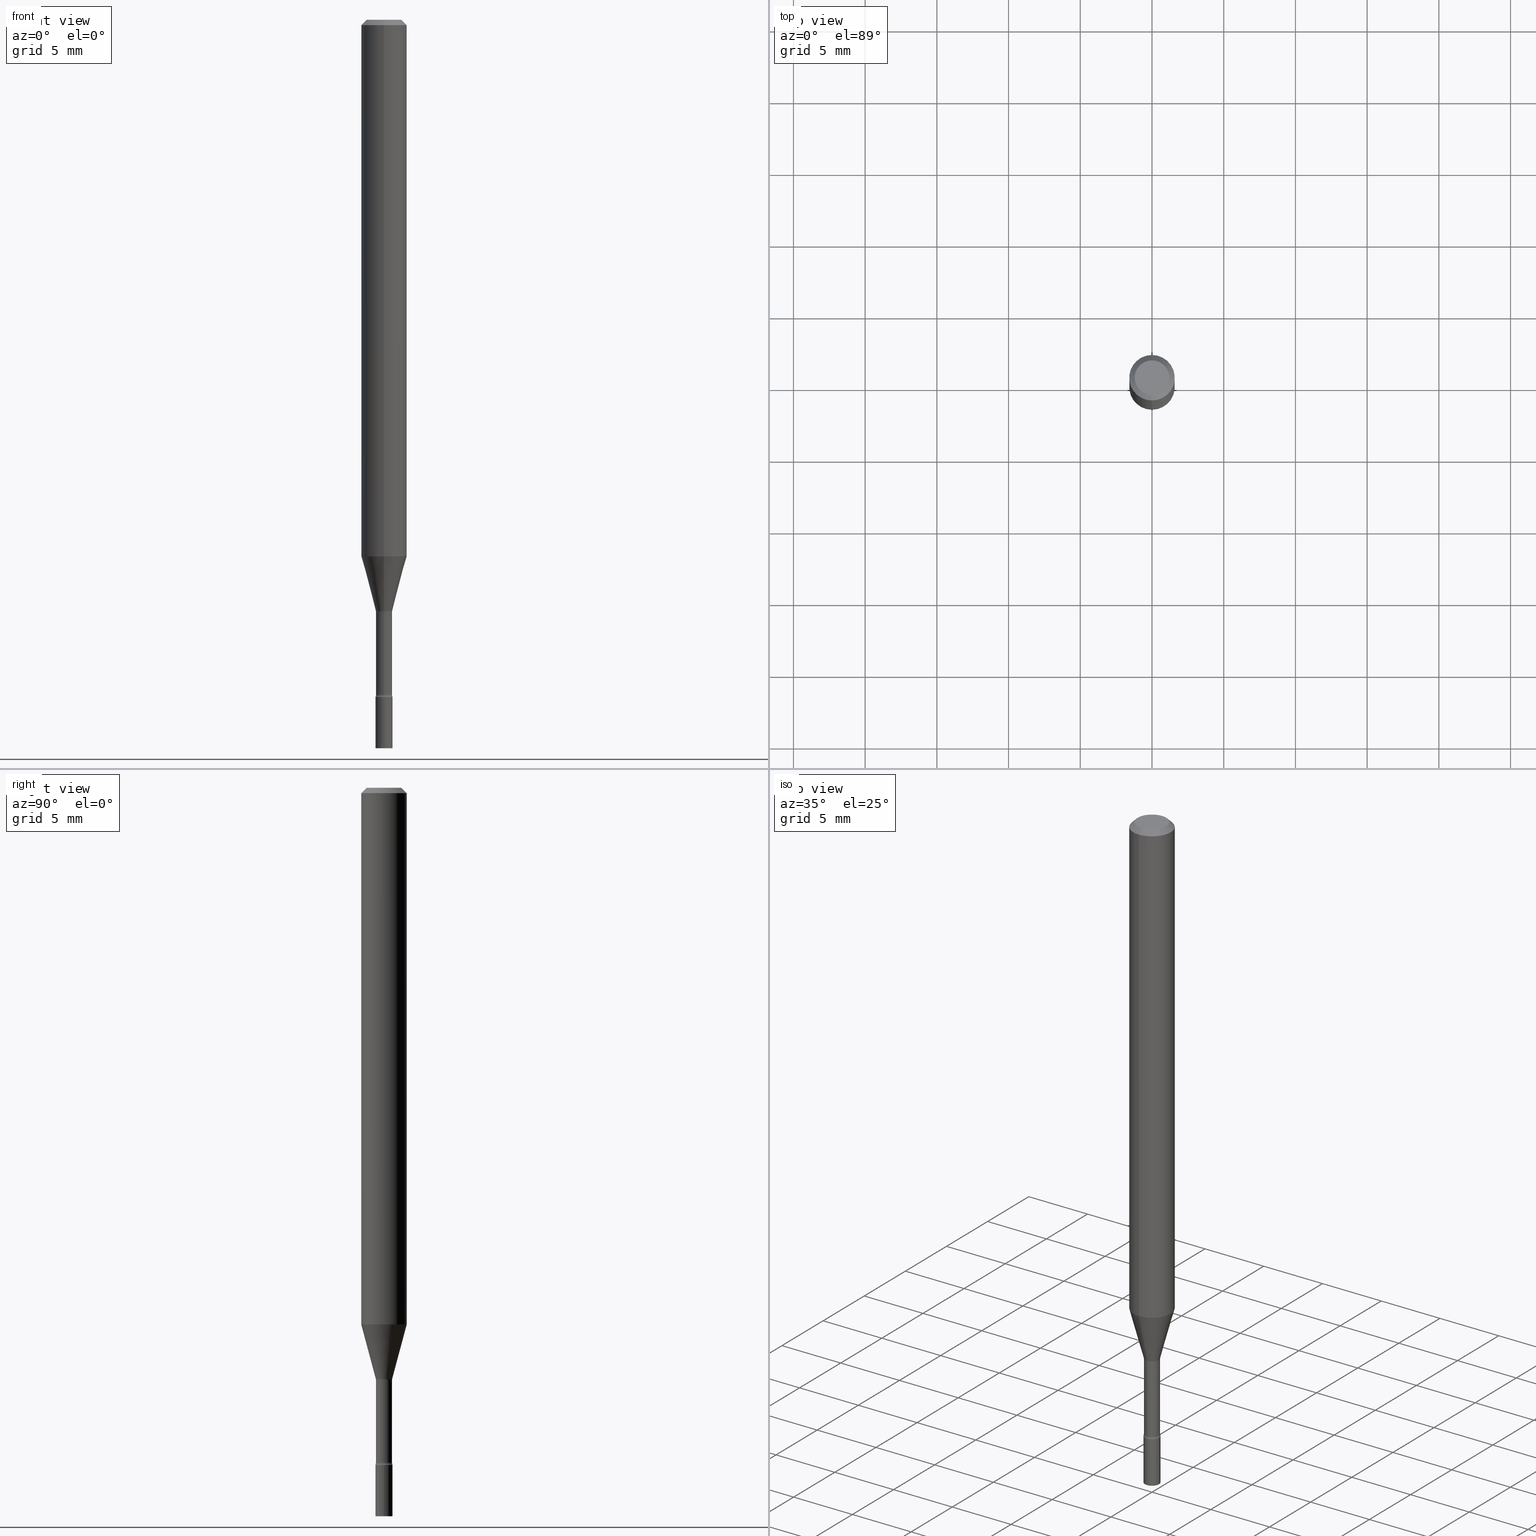
[diagram: canonical four-view strip — front | top / right | iso, engineering-drawing reading convention]
A machine part, canonical four-view strip (front | top / right | iso — engineering-drawing reading convention). The complete STEP part file that produces these views, byte-faithful:
ISO-10303-21;
HEADER;
FILE_DESCRIPTION (( 'STEP AP203' ),
    '1' );
FILE_NAME ('09371.STEP',
    '2024-03-08T23:26:30',
    ( '' ),
    ( '' ),
    'SwSTEP 2.0',
    'SolidWorks 2023',
    '' );
FILE_SCHEMA (( 'CONFIG_CONTROL_DESIGN' ));
ENDSEC;

DATA;
#1 = AXIS2_PLACEMENT_3D ( 'NONE', #191, #510, #148 ) ;
#2 = CC_DESIGN_SECURITY_CLASSIFICATION ( #336, ( #158 ) ) ;
#3 = DIRECTION ( 'NONE',  ( -6.982962677686265922E-15, -1.000000000000000000, 0.000000000000000000 ) ) ;
#4 = CC_DESIGN_DATE_AND_TIME_ASSIGNMENT ( #206, #520, ( #336 ) ) ;
#5 = ADVANCED_FACE ( 'NONE', ( #399 ), #71, .T. ) ;
#6 = CARTESIAN_POINT ( 'NONE',  ( -4.364351673553557762E-16, -0.06250000000000517641, -1.473225147374217503 ) ) ;
#7 = ORIENTED_EDGE ( 'NONE', *, *, #517, .T. ) ;
#8 = CALENDAR_DATE ( 2024, 8, 3 ) ;
#9 = EDGE_LOOP ( 'NONE', ( #288, #159 ) ) ;
#10 = CIRCLE ( 'NONE', #79, 0.02350000000000000352 ) ;
#11 = LINE ( 'NONE', #329, #295 ) ;
#12 = EDGE_CURVE ( 'NONE', #286, #381, #119, .T. ) ;
#13 = CARTESIAN_POINT ( 'NONE',  ( -0.02350000000000000352, -6.569835700394226398E-15, -2.000000000000000000 ) ) ;
#14 = EDGE_CURVE ( 'NONE', #78, #381, #494, .T. ) ;
#15 = EDGE_LOOP ( 'NONE', ( #419, #261, #438, #189 ) ) ;
#16 = DIRECTION ( 'NONE',  ( -6.982962677686265922E-15, -1.000000000000000000, 3.491467325019568091E-15 ) ) ;
#17 = CARTESIAN_POINT ( 'NONE',  ( -4.287811248607203282E-16, -0.06250000000000005551, -0.01499999999999981209 ) ) ;
#18 = VECTOR ( 'NONE', #59, 39.37007874015749564 ) ;
#19 = VECTOR ( 'NONE', #415, 39.37007874015748143 ) ;
#20 = VERTEX_POINT ( 'NONE', #103 ) ;
#21 = CARTESIAN_POINT ( 'NONE',  ( 4.546126510698169319E-29, -6.490663808909408226E-15, -1.858999999999999986 ) ) ;
#22 = ORIENTED_EDGE ( 'NONE', *, *, #12, .T. ) ;
#23 = LINE ( 'NONE', #142, #18 ) ;
#24 = FACE_OUTER_BOUND ( 'NONE', #310, .T. ) ;
#25 = EDGE_LOOP ( 'NONE', ( #512, #73, #469, #22 ) ) ;
#26 = DIRECTION ( 'NONE',  ( -6.982962677686265922E-15, -1.000000000000000000, 3.491467325019567696E-15 ) ) ;
#27 = CARTESIAN_POINT ( 'NONE',  ( 4.530670406511994597E-29, -6.468544740734887756E-15, -1.852672283192177582 ) ) ;
#28 = VERTEX_POINT ( 'NONE', #307 ) ;
#29 = VECTOR ( 'NONE', #309, 39.37007874015748143 ) ;
#30 = EDGE_CURVE ( 'NONE', #357, #20, #91, .T. ) ;
#31 = PRODUCT_DEFINITION_SHAPE ( 'NONE', 'NONE',  #131 ) ;
#32 = EDGE_LOOP ( 'NONE', ( #311, #339, #83, #330 ) ) ;
#33 = APPROVAL_DATE_TIME ( #392, #250 ) ;
#34 = DESIGN_CONTEXT ( 'detailed design', #363, 'design' ) ;
#35 = ORIENTED_EDGE ( 'NONE', *, *, #214, .F. ) ;
#36 = DIRECTION ( 'NONE',  ( -2.445478591985838029E-29, 3.491467325019567696E-15, 1.000000000000000000 ) ) ;
#37 = LINE ( 'NONE', #80, #398 ) ;
#38 = AXIS2_PLACEMENT_3D ( 'NONE', #271, #200, #102 ) ;
#39 = ORIENTED_EDGE ( 'NONE', *, *, #457, .T. ) ;
#40 = CIRCLE ( 'NONE', #405, 0.06250000000000000000 ) ;
#41 = CC_DESIGN_PERSON_AND_ORGANIZATION_ASSIGNMENT ( #168, #490, ( #158 ) ) ;
#42 = DIRECTION ( 'NONE',  ( -2.445478591985838029E-29, 3.491467325019567696E-15, 1.000000000000000000 ) ) ;
#43 = DIRECTION ( 'NONE',  ( 2.445478591985838029E-29, -3.491467325019567696E-15, -1.000000000000000000 ) ) ;
#44 = PERSON_AND_ORGANIZATION_ROLE ( 'classification_officer' ) ;
#45 = CARTESIAN_POINT ( 'NONE',  ( 7.070997803370271275E-46, -1.009542993615190427E-31, -2.891457658448894287E-17 ) ) ;
#46 = ORIENTED_EDGE ( 'NONE', *, *, #277, .F. ) ;
#47 = AXIS2_PLACEMENT_3D ( 'NONE', #313, #361, #109 ) ;
#48 = AXIS2_PLACEMENT_3D ( 'NONE', #225, #331, #463 ) ;
#49 = PERSON_AND_ORGANIZATION_ROLE ( 'design_supplier' ) ;
#50 =( GEOMETRIC_REPRESENTATION_CONTEXT ( 3 ) GLOBAL_UNCERTAINTY_ASSIGNED_CONTEXT ( ( #149 ) ) GLOBAL_UNIT_ASSIGNED_CONTEXT ( ( #355, #478, #390 ) ) REPRESENTATION_CONTEXT ( 'NONE', 'WORKASPACE' ) );
#51 = FACE_OUTER_BOUND ( 'NONE', #170, .T. ) ;
#52 = DIRECTION ( 'NONE',  ( -6.982962677686265922E-15, -1.000000000000000000, 0.000000000000000000 ) ) ;
#53 = DIRECTION ( 'NONE',  ( 6.982962677686265922E-15, 1.000000000000000000, -3.491467325019568091E-15 ) ) ;
#54 = COORDINATED_UNIVERSAL_TIME_OFFSET ( 5, 0, .BEHIND. ) ;
#55 = CARTESIAN_POINT ( 'NONE',  ( 3.668217887978764348E-31, -5.237200987529362293E-17, -0.01500000000000003067 ) ) ;
#56 = AXIS2_PLACEMENT_3D ( 'NONE', #55, #375, #323 ) ;
#57 = CYLINDRICAL_SURFACE ( 'NONE', #483, 0.02210000000000002587 ) ;
#58 = EDGE_CURVE ( 'NONE', #64, #97, #156, .T. ) ;
#59 = DIRECTION ( 'NONE',  ( -1.807323732225329350E-15, -0.2588190451025180194, 0.9659258262890689783 ) ) ;
#60 = EDGE_CURVE ( 'NONE', #242, #28, #199, .T. ) ;
#61 = DIRECTION ( 'NONE',  ( -2.445478591985838029E-29, 3.491467325019567696E-15, 1.000000000000000000 ) ) ;
#62 = CARTESIAN_POINT ( 'NONE',  ( 1.570299446030275612E-16, 0.02209999999999431863, -1.625974787463811078 ) ) ;
#63 = APPROVAL_PERSON_ORGANIZATION ( #284, #453, #436 ) ;
#64 = VERTEX_POINT ( 'NONE', #353 ) ;
#65 = CARTESIAN_POINT ( 'NONE',  ( 2.636113549670428316E-16, 0.03709999999999358949, -1.852672283192177582 ) ) ;
#66 = ORIENTED_EDGE ( 'NONE', *, *, #138, .F. ) ;
#67 = CARTESIAN_POINT ( 'NONE',  ( 3.976270622386257300E-29, -5.677060627859345352E-15, -1.625974787463811078 ) ) ;
#68 = ADVANCED_FACE ( 'NONE', ( #476 ), #155, .F. ) ;
#69 = ORIENTED_EDGE ( 'NONE', *, *, #257, .T. ) ;
#70 = CYLINDRICAL_SURFACE ( 'NONE', #144, 0.02350000000000000352 ) ;
#71 = CONICAL_SURFACE ( 'NONE', #346, 0.06250000000000000000, 0.7853981633974483900 ) ;
#72 = AXIS2_PLACEMENT_3D ( 'NONE', #445, #61, #263 ) ;
#73 = ORIENTED_EDGE ( 'NONE', *, *, #426, .F. ) ;
#74 = APPLICATION_PROTOCOL_DEFINITION ( 'international standard', 'config_control_design', 1994, #338 ) ;
#75 = ORIENTED_EDGE ( 'NONE', *, *, #416, .F. ) ;
#76 = COORDINATED_UNIVERSAL_TIME_OFFSET ( 5, 0, .BEHIND. ) ;
#77 = DIRECTION ( 'NONE',  ( -6.982962677686265922E-15, -1.000000000000000000, 0.000000000000000000 ) ) ;
#78 = VERTEX_POINT ( 'NONE', #115 ) ;
#79 = AXIS2_PLACEMENT_3D ( 'NONE', #21, #500, #186 ) ;
#80 = CARTESIAN_POINT ( 'NONE',  ( -0.02350000000000000352, 1.669775429036235687E-16, -1.155949746209903035E-30 ) ) ;
#81 = CARTESIAN_POINT ( 'NONE',  ( 0.000000000000000000, 0.000000000000000000, 0.000000000000000000 ) ) ;
#82 = CARTESIAN_POINT ( 'NONE',  ( -1.640996229255817445E-16, -0.02350000000000649139, -1.858999999999999986 ) ) ;
#83 = ORIENTED_EDGE ( 'NONE', *, *, #277, .T. ) ;
#84 = AXIS2_PLACEMENT_3D ( 'NONE', #183, #332, #305 ) ;
#85 = DIRECTION ( 'NONE',  ( -6.982962677686265922E-15, -1.000000000000000000, 3.491467325019568091E-15 ) ) ;
#86 = DIRECTION ( 'NONE',  ( -6.982962677686265922E-15, -1.000000000000000000, 3.483106191921935554E-15 ) ) ;
#87 = EDGE_CURVE ( 'NONE', #192, #78, #471, .T. ) ;
#88 = MANIFOLD_SOLID_BREP ( 'Body-Move/Copy2[2]', #449 ) ;
#89 = CARTESIAN_POINT ( 'NONE',  ( 7.070997803370271275E-46, -1.009542993615190427E-31, -2.891457658448894287E-17 ) ) ;
#90 = ADVANCED_FACE ( 'NONE', ( #229 ), #151, .T. ) ;
#91 = CIRCLE ( 'NONE', #181, 0.02350000000000000352 ) ;
#92 = AXIS2_PLACEMENT_3D ( 'NONE', #382, #265, #301 ) ;
#93 = AXIS2_PLACEMENT_3D ( 'NONE', #204, #194, #364 ) ;
#94 = CARTESIAN_POINT ( 'NONE',  ( 0.02350000000000000352, -1.640996229256272766E-16, 1.145901542312045115E-30 ) ) ;
#95 = ADVANCED_FACE ( 'NONE', ( #24 ), #376, .T. ) ;
#96 = DIRECTION ( 'NONE',  ( -2.445478591985837749E-29, 3.491467325019568091E-15, 1.000000000000000000 ) ) ;
#97 = VERTEX_POINT ( 'NONE', #241 ) ;
#98 = DIRECTION ( 'NONE',  ( -4.851104656540964275E-15, -0.7071067811865500152, -0.7071067811865450192 ) ) ;
#99 = CARTESIAN_POINT ( 'NONE',  ( -3.773273898774340269E-16, -0.04749999999999999362, 1.369301213539405015E-16 ) ) ;
#100 = CIRCLE ( 'NONE', #358, 0.04749999999999999362 ) ;
#101 = AXIS2_PLACEMENT_3D ( 'NONE', #67, #222, #26 ) ;
#102 = DIRECTION ( 'NONE',  ( -6.982962677686265922E-15, -1.000000000000000000, 0.000000000000000000 ) ) ;
#103 = CARTESIAN_POINT ( 'NONE',  ( -0.02350000000000000352, -6.569835700394226398E-15, -1.858999999999999986 ) ) ;
#104 = ORIENTED_EDGE ( 'NONE', *, *, #177, .F. ) ;
#105 = FACE_OUTER_BOUND ( 'NONE', #327, .T. ) ;
#106 = CARTESIAN_POINT ( 'NONE',  ( 4.364351673553919652E-16, 0.06249999999999995143, -0.01500000000000024751 ) ) ;
#107 = ORIENTED_EDGE ( 'NONE', *, *, #517, .F. ) ;
#108 = APPROVAL_STATUS ( 'not_yet_approved' ) ;
#109 = DIRECTION ( 'NONE',  ( -6.982962677686265922E-15, -1.000000000000000000, 3.491467325019567696E-15 ) ) ;
#110 = AXIS2_PLACEMENT_3D ( 'NONE', #89, #256, #407 ) ;
#111 = AXIS2_PLACEMENT_3D ( 'NONE', #443, #244, #400 ) ;
#112 = ORIENTED_EDGE ( 'NONE', *, *, #177, .T. ) ;
#113 = LOCAL_TIME ( 18, 26, 30.00000000000000000, #371 ) ;
#114 = DATE_TIME_ROLE ( 'creation_date' ) ;
#115 = CARTESIAN_POINT ( 'NONE',  ( 1.620037437533484049E-16, 0.02209999999999359352, -1.852672283192177582 ) ) ;
#116 = ORIENTED_EDGE ( 'NONE', *, *, #439, .T. ) ;
#117 = ORIENTED_EDGE ( 'NONE', *, *, #519, .F. ) ;
#118 = FACE_OUTER_BOUND ( 'NONE', #396, .T. ) ;
#119 = CIRCLE ( 'NONE', #334, 0.02209999999999999812 ) ;
#120 = AXIS2_PLACEMENT_3D ( 'NONE', #367, #298, #294 ) ;
#121 = ADVANCED_FACE ( 'NONE', ( #395 ), #188, .T. ) ;
#122 = FACE_OUTER_BOUND ( 'NONE', #15, .T. ) ;
#123 = CALENDAR_DATE ( 2024, 8, 3 ) ;
#124 = CARTESIAN_POINT ( 'NONE',  ( 4.440892098500625669E-16, 0.06250000000000000000, -2.182167078137229810E-16 ) ) ;
#125 = EDGE_LOOP ( 'NONE', ( #514, #107 ) ) ;
#126 = DIRECTION ( 'NONE',  ( -2.445478591985838029E-29, 3.491467325019567696E-15, 1.000000000000000000 ) ) ;
#127 = CARTESIAN_POINT ( 'NONE',  ( 1.570299446029823003E-16, 0.02210000000000002587, -7.716142788293254101E-17 ) ) ;
#128 = AXIS2_PLACEMENT_3D ( 'NONE', #251, #406, #161 ) ;
#129 = DIRECTION ( 'NONE',  ( -6.982962677686269077E-15, -1.000000000000000000, 0.000000000000000000 ) ) ;
#130 = ORIENTED_EDGE ( 'NONE', *, *, #14, .F. ) ;
#131 = PRODUCT_DEFINITION ( 'UNKNOWN', '', #158, #34 ) ;
#132 = EDGE_LOOP ( 'NONE', ( #374, #518, #39, #173 ) ) ;
#133 = LINE ( 'NONE', #94, #29 ) ;
#134 = CONICAL_SURFACE ( 'NONE', #92, 0.06250000000000000000, 0.7853981633974483900 ) ;
#135 = DIRECTION ( 'NONE',  ( 7.105427357601001859E-15, 1.000000000000000000, 0.000000000000000000 ) ) ;
#136 = ORIENTED_EDGE ( 'NONE', *, *, #12, .F. ) ;
#137 = FACE_OUTER_BOUND ( 'NONE', #275, .T. ) ;
#138 = EDGE_CURVE ( 'NONE', #237, #352, #397, .T. ) ;
#139 = PERSON ( 'UNSPECIFIED', 'UNSPECIFIED', 'UNSPECIFIED', ('UNSPECIFIED'), ('UNSPECIFIED'), ('UNSPECIFIED') ) ;
#140 = CARTESIAN_POINT ( 'NONE',  ( -4.364351673553916201E-16, -0.06250000000000000000, 2.182167078137229810E-16 ) ) ;
#141 = EDGE_CURVE ( 'NONE', #64, #428, #100, .T. ) ;
#142 = CARTESIAN_POINT ( 'NONE',  ( -1.578925554262733618E-16, -0.02261111260566964209, -1.622092501787272933 ) ) ;
#143 = CIRCLE ( 'NONE', #509, 0.02350000000000000352 ) ;
#144 = AXIS2_PLACEMENT_3D ( 'NONE', #147, #160, #429 ) ;
#145 = DIRECTION ( 'NONE',  ( -2.438088387897960049E-29, 3.491481338843145188E-15, 1.000000000000000000 ) ) ;
#146 = EDGE_LOOP ( 'NONE', ( #203, #116, #7, #226 ) ) ;
#147 = CARTESIAN_POINT ( 'NONE',  ( 0.000000000000000000, 0.000000000000000000, 0.000000000000000000 ) ) ;
#148 = DIRECTION ( 'NONE',  ( 1.000000000000000000, -6.982962677686265922E-15, 4.876176775795935793E-29 ) ) ;
#149 = UNCERTAINTY_MEASURE_WITH_UNIT (LENGTH_MEASURE( 1.000000000000000082E-05 ), #355, 'distance_accuracy_value', 'NONE');
#150 = EDGE_LOOP ( 'NONE', ( #130, #435, #152, #46 ) ) ;
#151 = CYLINDRICAL_SURFACE ( 'NONE', #1, 0.02350000000000000352 ) ;
#152 = ORIENTED_EDGE ( 'NONE', *, *, #468, .T. ) ;
#153 = CC_DESIGN_PERSON_AND_ORGANIZATION_ASSIGNMENT ( #316, #513, ( #131 ) ) ;
#154 = DATE_AND_TIME ( #475, #224 ) ;
#155 = TOROIDAL_SURFACE ( 'NONE', #47, 0.03710000000000000103, 0.01500000000000002720 ) ;
#156 = LINE ( 'NONE', #106, #267 ) ;
#157 = AXIS2_PLACEMENT_3D ( 'NONE', #418, #343, #300 ) ;
#158 = PRODUCT_DEFINITION_FORMATION_WITH_SPECIFIED_SOURCE ( 'ANY', '', #402, .NOT_KNOWN. ) ;
#159 = ORIENTED_EDGE ( 'NONE', *, *, #351, .T. ) ;
#160 = DIRECTION ( 'NONE',  ( -2.445468806185136597E-29, 3.491481338843145583E-15, 1.000000000000000000 ) ) ;
#161 = DIRECTION ( 'NONE',  ( 1.000000000000000000, -6.982962677686269866E-15, 0.000000000000000000 ) ) ;
#162 = ORIENTED_EDGE ( 'NONE', *, *, #413, .F. ) ;
#163 = ADVANCED_FACE ( 'NONE', ( #51 ), #212, .T. ) ;
#164 = PERSON_AND_ORGANIZATION ( #139, #184 ) ;
#165 = ORIENTED_EDGE ( 'NONE', *, *, #60, .T. ) ;
#166 = AXIS2_PLACEMENT_3D ( 'NONE', #185, #460, #425 ) ;
#167 = APPROVAL_PERSON_ORGANIZATION ( #408, #422, #486 ) ;
#168 = PERSON_AND_ORGANIZATION ( #139, #184 ) ;
#169 = DIRECTION ( 'NONE',  ( -6.982962677686265922E-15, -1.000000000000000000, 3.491467325019567696E-15 ) ) ;
#170 = EDGE_LOOP ( 'NONE', ( #314, #393, #136, #283 ) ) ;
#171 = DIRECTION ( 'NONE',  ( 1.839019923739599526E-15, 0.2588190451025248473, 0.9659258262890670910 ) ) ;
#172 = CARTESIAN_POINT ( 'NONE',  ( -1.543234751768266986E-16, -0.02210000000000567413, -1.625974787463811078 ) ) ;
#173 = ORIENTED_EDGE ( 'NONE', *, *, #287, .F. ) ;
#174 = CIRCLE ( 'NONE', #110, 0.04749999999999999362 ) ;
#175 = DIRECTION ( 'NONE',  ( -1.000000000000000000, 6.982962677686265922E-15, -4.883557194083112340E-29 ) ) ;
#176 = ORIENTED_EDGE ( 'NONE', *, *, #227, .T. ) ;
#177 = EDGE_CURVE ( 'NONE', #387, #230, #335, .T. ) ;
#178 = DIRECTION ( 'NONE',  ( -6.982962677686267499E-15, -1.000000000000000000, 0.000000000000000000 ) ) ;
#179 = ADVANCED_FACE ( 'NONE', ( #318 ), #440, .T. ) ;
#180 = DIRECTION ( 'NONE',  ( -2.445478591985837749E-29, 3.491467325019568091E-15, 1.000000000000000000 ) ) ;
#181 = AXIS2_PLACEMENT_3D ( 'NONE', #232, #274, #464 ) ;
#182 = CIRCLE ( 'NONE', #166, 0.02261111260566397996 ) ;
#183 = CARTESIAN_POINT ( 'NONE',  ( 1.640996229256761859E-16, 0.02349999999999301953, -2.000000000000000000 ) ) ;
#184 = ORGANIZATION ( 'UNSPECIFIED', 'UNSPECIFIED', '' ) ;
#185 = CARTESIAN_POINT ( 'NONE',  ( 3.966792487341526174E-29, -5.663482968149508762E-15, -1.622092501787272933 ) ) ;
#186 = DIRECTION ( 'NONE',  ( 1.000000000000000000, -6.982962677686269866E-15, 0.000000000000000000 ) ) ;
#187 = CARTESIAN_POINT ( 'NONE',  ( 0.000000000000000000, 0.000000000000000000, 0.000000000000000000 ) ) ;
#188 = PLANE ( 'NONE',  #441 ) ;
#189 = ORIENTED_EDGE ( 'NONE', *, *, #341, .F. ) ;
#190 = PERSON_AND_ORGANIZATION ( #139, #184 ) ;
#191 = CARTESIAN_POINT ( 'NONE',  ( 0.000000000000000000, 0.000000000000000000, 0.000000000000000000 ) ) ;
#192 = VERTEX_POINT ( 'NONE', #484 ) ;
#193 = ADVANCED_FACE ( 'NONE', ( #105 ), #268, .F. ) ;
#194 = DIRECTION ( 'NONE',  ( 0.000000000000000000, 0.000000000000000000, 1.000000000000000000 ) ) ;
#195 = EDGE_LOOP ( 'NONE', ( #117, #233, #293, #162 ) ) ;
#196 = LENGTH_MEASURE_WITH_UNIT ( LENGTH_MEASURE( 0.02539999999999999897 ), #312 );
#197 = ORIENTED_EDGE ( 'NONE', *, *, #416, .T. ) ;
#198 = APPROVAL_DATE_TIME ( #394, #453 ) ;
#199 = CIRCLE ( 'NONE', #38, 0.02350000000000000352 ) ;
#200 = DIRECTION ( 'NONE',  ( -2.445478591985838029E-29, 3.491467325019567696E-15, 1.000000000000000000 ) ) ;
#201 = AXIS2_PLACEMENT_3D ( 'NONE', #487, #175, #178 ) ;
#202 = LOCAL_TIME ( 18, 26, 30.00000000000000000, #481 ) ;
#203 = ORIENTED_EDGE ( 'NONE', *, *, #386, .F. ) ;
#204 = CARTESIAN_POINT ( 'NONE',  ( 0.000000000000000000, 0.000000000000000000, 0.000000000000000000 ) ) ;
#205 = APPROVAL_DATE_TIME ( #328, #422 ) ;
#206 = DATE_AND_TIME ( #8, #113 ) ;
#207 = DIRECTION ( 'NONE',  ( -1.000000000000000000, 6.982962677686265922E-15, -4.883557194083112340E-29 ) ) ;
#208 = AXIS2_PLACEMENT_3D ( 'NONE', #264, #36, #480 ) ;
#209 = VECTOR ( 'NONE', #96, 39.37007874015748143 ) ;
#210 = EDGE_CURVE ( 'NONE', #431, #499, #217, .T. ) ;
#211 = SECURITY_CLASSIFICATION_LEVEL ( 'unclassified' ) ;
#212 = CYLINDRICAL_SURFACE ( 'NONE', #388, 0.02210000000000002587 ) ;
#213 = DIRECTION ( 'NONE',  ( -2.445478591985837749E-29, 3.491467325019568091E-15, 1.000000000000000000 ) ) ;
#214 = EDGE_CURVE ( 'NONE', #230, #387, #143, .T. ) ;
#215 = DIRECTION ( 'NONE',  ( 2.445478591985837749E-29, -3.491467325019568091E-15, -1.000000000000000000 ) ) ;
#216 = DIMENSIONAL_EXPONENTS ( 1.000000000000000000, 0.000000000000000000, 0.000000000000000000, 0.000000000000000000, 0.000000000000000000, 0.000000000000000000, 0.000000000000000000 ) ;
#217 = CIRCLE ( 'NONE', #72, 0.02261111260566397996 ) ;
#218 = FACE_OUTER_BOUND ( 'NONE', #461, .T. ) ;
#219 = EDGE_CURVE ( 'NONE', #499, #286, #292, .T. ) ;
#220 = ORIENTED_EDGE ( 'NONE', *, *, #488, .F. ) ;
#221 = DIRECTION ( 'NONE',  ( 7.105427357601001859E-15, 1.000000000000000000, 0.000000000000000000 ) ) ;
#222 = DIRECTION ( 'NONE',  ( -2.445478591985838029E-29, 3.491467325019567696E-15, 1.000000000000000000 ) ) ;
#223 = CONICAL_SURFACE ( 'NONE', #515, 0.02261111260566397996, 0.2617993877991501850 ) ;
#224 = LOCAL_TIME ( 18, 26, 30.00000000000000000, #516 ) ;
#225 = CARTESIAN_POINT ( 'NONE',  ( 4.530670406511994597E-29, -6.468544740734887756E-15, -1.852672283192177582 ) ) ;
#226 = ORIENTED_EDGE ( 'NONE', *, *, #276, .F. ) ;
#227 = EDGE_CURVE ( 'NONE', #391, #97, #423, .T. ) ;
#228 = FACE_OUTER_BOUND ( 'NONE', #132, .T. ) ;
#229 = FACE_OUTER_BOUND ( 'NONE', #195, .T. ) ;
#230 = VERTEX_POINT ( 'NONE', #13 ) ;
#231 = LINE ( 'NONE', #140, #209 ) ;
#232 = CARTESIAN_POINT ( 'NONE',  ( 4.546126510698169319E-29, -6.490663808909408226E-15, -1.858999999999999986 ) ) ;
#233 = ORIENTED_EDGE ( 'NONE', *, *, #214, .T. ) ;
#234 = PRODUCT_RELATED_PRODUCT_CATEGORY ( 'detail', '', ( #402 ) ) ;
#235 = CARTESIAN_POINT ( 'NONE',  ( 4.546144702501673568E-29, -6.490637757211377196E-15, -1.858999999999999986 ) ) ;
#236 = AXIS2_PLACEMENT_3D ( 'NONE', #456, #270, #221 ) ;
#237 = VERTEX_POINT ( 'NONE', #6 ) ;
#238 = CALENDAR_DATE ( 2024, 8, 3 ) ;
#239 = ORIENTED_EDGE ( 'NONE', *, *, #351, .F. ) ;
#240 = CALENDAR_DATE ( 2024, 8, 3 ) ;
#241 = CARTESIAN_POINT ( 'NONE',  ( 4.440892098500988052E-16, 0.06249999999999993755, -0.01500000000000024751 ) ) ;
#242 = VERTEX_POINT ( 'NONE', #82 ) ;
#243 = CIRCLE ( 'NONE', #48, 0.02210000000000006057 ) ;
#244 = DIRECTION ( 'NONE',  ( -2.445478591985838029E-29, 3.491467325019567696E-15, 1.000000000000000000 ) ) ;
#245 = DIRECTION ( 'NONE',  ( -2.445468806185136597E-29, 3.491481338843145583E-15, 1.000000000000000000 ) ) ;
#246 = DIRECTION ( 'NONE',  ( -6.982962677686266711E-15, -1.000000000000000000, 3.491467325019567302E-15 ) ) ;
#247 = DIRECTION ( 'NONE',  ( -2.445478591985838029E-29, 3.491467325019567696E-15, 1.000000000000000000 ) ) ;
#248 = AXIS2_PLACEMENT_3D ( 'NONE', #27, #350, #285 ) ;
#249 = AXIS2_PLACEMENT_3D ( 'NONE', #65, #427, #135 ) ;
#250 = APPROVAL ( #108, 'UNSPECIFIED' ) ;
#251 = CARTESIAN_POINT ( 'NONE',  ( 4.890937612370273194E-29, -6.982962677686291165E-15, -2.000000000000000000 ) ) ;
#252 = PLANE ( 'NONE',  #495 ) ;
#253 = SHAPE_DEFINITION_REPRESENTATION ( #31, #308 ) ;
#254 = ADVANCED_FACE ( 'NONE', ( #122 ), #223, .T. ) ;
#255 = CARTESIAN_POINT ( 'NONE',  ( 3.316907271900976096E-16, 0.04749999999999999362, -1.803019862306739220E-16 ) ) ;
#256 = DIRECTION ( 'NONE',  ( -2.445478591985838029E-29, 3.491467325019567696E-15, 1.000000000000000000 ) ) ;
#257 = EDGE_CURVE ( 'NONE', #352, #97, #409, .T. ) ;
#258 = EDGE_LOOP ( 'NONE', ( #104, #35 ) ) ;
#259 = AXIS2_PLACEMENT_3D ( 'NONE', #497, #207, #129 ) ;
#260 = PLANE ( 'NONE',  #505 ) ;
#261 = ORIENTED_EDGE ( 'NONE', *, *, #210, .T. ) ;
#262 = CARTESIAN_POINT ( 'NONE',  ( -4.364351673553912750E-16, -0.06250000000000005551, -0.01499999999999981209 ) ) ;
#263 = DIRECTION ( 'NONE',  ( -6.982962677686265922E-15, -1.000000000000000000, 0.000000000000000000 ) ) ;
#264 = CARTESIAN_POINT ( 'NONE',  ( 4.530652276630265840E-29, -6.468570703757412318E-15, -1.852672283192177582 ) ) ;
#265 = DIRECTION ( 'NONE',  ( 2.445478591985838029E-29, -3.491467325019567696E-15, -1.000000000000000000 ) ) ;
#266 = ORIENTED_EDGE ( 'NONE', *, *, #302, .T. ) ;
#267 = VECTOR ( 'NONE', #466, 39.37007874015748143 ) ;
#268 = TOROIDAL_SURFACE ( 'NONE', #208, 0.03710000000000005654, 0.01499999999999999077 ) ;
#269 = CC_DESIGN_APPROVAL ( #422, ( #336 ) ) ;
#270 = DIRECTION ( 'NONE',  ( 1.000000000000000000, -7.105427357601001070E-15, 4.926315336922240552E-29 ) ) ;
#271 = CARTESIAN_POINT ( 'NONE',  ( 4.546144702501673568E-29, -6.490637757211377196E-15, -1.858999999999999986 ) ) ;
#272 = FACE_OUTER_BOUND ( 'NONE', #125, .T. ) ;
#273 = ADVANCED_FACE ( 'NONE', ( #377 ), #252, .F. ) ;
#274 = DIRECTION ( 'NONE',  ( -2.445468806185136597E-29, 3.491481338843145583E-15, 1.000000000000000000 ) ) ;
#275 = EDGE_LOOP ( 'NONE', ( #239, #197, #176, #322 ) ) ;
#276 = EDGE_CURVE ( 'NONE', #192, #242, #404, .T. ) ;
#277 = EDGE_CURVE ( 'NONE', #381, #286, #280, .T. ) ;
#278 = ORIENTED_EDGE ( 'NONE', *, *, #426, .T. ) ;
#279 = DIRECTION ( 'NONE',  ( -6.982962677686265922E-15, -1.000000000000000000, 0.000000000000000000 ) ) ;
#280 = CIRCLE ( 'NONE', #120, 0.02209999999999999812 ) ;
#281 = AXIS2_PLACEMENT_3D ( 'NONE', #235, #42, #279 ) ;
#282 = CARTESIAN_POINT ( 'NONE',  ( 3.966792487341526174E-29, -5.663482968149508762E-15, -1.622092501787272933 ) ) ;
#283 = ORIENTED_EDGE ( 'NONE', *, *, #468, .F. ) ;
#284 = PERSON_AND_ORGANIZATION ( #139, #184 ) ;
#285 = DIRECTION ( 'NONE',  ( -6.982962677686265922E-15, -1.000000000000000000, 0.000000000000000000 ) ) ;
#286 = VERTEX_POINT ( 'NONE', #172 ) ;
#287 = EDGE_CURVE ( 'NONE', #97, #391, #40, .T. ) ;
#288 = ORIENTED_EDGE ( 'NONE', *, *, #141, .T. ) ;
#289 = DIRECTION ( 'NONE',  ( -2.445468806185136877E-29, 3.491481338843145188E-15, 1.000000000000000000 ) ) ;
#290 = ADVANCED_FACE ( 'NONE', ( #218 ), #370, .T. ) ;
#291 = DIRECTION ( 'NONE',  ( 1.000000000000000000, -6.982962677686265922E-15, 4.876176775795935793E-29 ) ) ;
#292 = CIRCLE ( 'NONE', #201, 0.01500000000000002720 ) ;
#293 = ORIENTED_EDGE ( 'NONE', *, *, #488, .T. ) ;
#294 = DIRECTION ( 'NONE',  ( -6.982962677686265922E-15, -1.000000000000000000, 0.000000000000000000 ) ) ;
#295 = VECTOR ( 'NONE', #171, 39.37007874015748143 ) ;
#296 = DIRECTION ( 'NONE',  ( -2.445478591985837749E-29, 3.491467325019568091E-15, 1.000000000000000000 ) ) ;
#297 = CARTESIAN_POINT ( 'NONE',  ( 3.668217887978764348E-31, -5.237200987529362293E-17, -0.01500000000000003067 ) ) ;
#298 = DIRECTION ( 'NONE',  ( -2.445478591985838029E-29, 3.491467325019567696E-15, 1.000000000000000000 ) ) ;
#299 = ORIENTED_EDGE ( 'NONE', *, *, #30, .T. ) ;
#300 = DIRECTION ( 'NONE',  ( -6.982962677686265922E-15, -1.000000000000000000, 3.491467325019567696E-15 ) ) ;
#301 = DIRECTION ( 'NONE',  ( 6.982962677686265922E-15, 1.000000000000000000, -3.483106191921935554E-15 ) ) ;
#302 = EDGE_CURVE ( 'NONE', #431, #352, #11, .T. ) ;
#303 = CARTESIAN_POINT ( 'NONE',  ( 0.02350000000000000352, -7.147062300611918023E-15, -2.000000000000000000 ) ) ;
#304 = CC_DESIGN_PERSON_AND_ORGANIZATION_ASSIGNMENT ( #164, #49, ( #158 ) ) ;
#305 = DIRECTION ( 'NONE',  ( -1.000000000000000000, 6.982962677686265922E-15, -4.876176775795935793E-29 ) ) ;
#306 = CARTESIAN_POINT ( 'NONE',  ( 4.530652276630265840E-29, -6.468570703757412318E-15, -1.852672283192177582 ) ) ;
#307 = CARTESIAN_POINT ( 'NONE',  ( 1.669775429036689529E-16, 0.02349999999999350525, -1.858999999999999986 ) ) ;
#308 = ADVANCED_BREP_SHAPE_REPRESENTATION ( '09371', ( #448, #88, #93 ), #50 ) ;
#309 = DIRECTION ( 'NONE',  ( -2.445468806185136877E-29, 3.491481338843145188E-15, 1.000000000000000000 ) ) ;
#310 = EDGE_LOOP ( 'NONE', ( #278, #266, #66, #317 ) ) ;
#311 = ORIENTED_EDGE ( 'NONE', *, *, #210, .F. ) ;
#312 =( LENGTH_UNIT ( ) NAMED_UNIT ( * ) SI_UNIT ( $, .METRE. ) );
#313 = CARTESIAN_POINT ( 'NONE',  ( 3.976270622386257300E-29, -5.677060627859345352E-15, -1.625974787463811078 ) ) ;
#314 = ORIENTED_EDGE ( 'NONE', *, *, #87, .T. ) ;
#315 = AXIS2_PLACEMENT_3D ( 'NONE', #485, #126, #410 ) ;
#316 = PERSON_AND_ORGANIZATION ( #139, #184 ) ;
#317 = ORIENTED_EDGE ( 'NONE', *, *, #447, .F. ) ;
#318 = FACE_OUTER_BOUND ( 'NONE', #258, .T. ) ;
#319 = ORIENTED_EDGE ( 'NONE', *, *, #227, .F. ) ;
#320 = PERSON_AND_ORGANIZATION ( #139, #184 ) ;
#321 = CIRCLE ( 'NONE', #281, 0.02350000000000000352 ) ;
#322 = ORIENTED_EDGE ( 'NONE', *, *, #58, .F. ) ;
#323 = DIRECTION ( 'NONE',  ( -6.982962677686265922E-15, -1.000000000000000000, 3.483106191921935554E-15 ) ) ;
#324 = CARTESIAN_POINT ( 'NONE',  ( 3.668217887978764348E-31, -5.237200987529362293E-17, -0.01500000000000003067 ) ) ;
#325 = APPROVAL_STATUS ( 'not_yet_approved' ) ;
#326 = FACE_OUTER_BOUND ( 'NONE', #150, .T. ) ;
#327 = EDGE_LOOP ( 'NONE', ( #342, #501, #472, #165 ) ) ;
#328 = DATE_AND_TIME ( #123, #459 ) ;
#329 = CARTESIAN_POINT ( 'NONE',  ( 1.606616180941213573E-16, 0.02261111260565831435, -1.622092501787272933 ) ) ;
#330 = ORIENTED_EDGE ( 'NONE', *, *, #219, .F. ) ;
#331 = DIRECTION ( 'NONE',  ( -2.445478591985838029E-29, 3.491467325019567696E-15, 1.000000000000000000 ) ) ;
#332 = DIRECTION ( 'NONE',  ( 2.438088387897960049E-29, -3.491481338843145188E-15, -1.000000000000000000 ) ) ;
#333 = DIRECTION ( 'NONE',  ( -6.982962677686265922E-15, -1.000000000000000000, 3.491467325019568091E-15 ) ) ;
#334 = AXIS2_PLACEMENT_3D ( 'NONE', #368, #489, #3 ) ;
#335 = CIRCLE ( 'NONE', #128, 0.02350000000000000352 ) ;
#336 = SECURITY_CLASSIFICATION ( '', '', #211 ) ;
#337 = CARTESIAN_POINT ( 'NONE',  ( 0.02350000000000000352, -6.654763431835035084E-15, -1.858999999999999986 ) ) ;
#338 = APPLICATION_CONTEXT ( 'configuration controlled 3d designs of mechanical parts and assemblies' ) ;
#339 = ORIENTED_EDGE ( 'NONE', *, *, #430, .T. ) ;
#340 = FACE_OUTER_BOUND ( 'NONE', #146, .T. ) ;
#341 = EDGE_CURVE ( 'NONE', #352, #237, #412, .T. ) ;
#342 = ORIENTED_EDGE ( 'NONE', *, *, #439, .F. ) ;
#343 = DIRECTION ( 'NONE',  ( -2.445478591985838029E-29, 3.491467325019567696E-15, 1.000000000000000000 ) ) ;
#344 = CARTESIAN_POINT ( 'NONE',  ( 4.546126510698169319E-29, -6.490663808909408226E-15, -1.858999999999999986 ) ) ;
#345 = ORIENTED_EDGE ( 'NONE', *, *, #287, .T. ) ;
#346 = AXIS2_PLACEMENT_3D ( 'NONE', #324, #43, #444 ) ;
#347 = VECTOR ( 'NONE', #213, 39.37007874015748143 ) ;
#348 = TOROIDAL_SURFACE ( 'NONE', #101, 0.03710000000000000103, 0.01500000000000002720 ) ;
#349 = PERSON_AND_ORGANIZATION_ROLE ( 'design_owner' ) ;
#350 = DIRECTION ( 'NONE',  ( -2.445478591985838029E-29, 3.491467325019567696E-15, 1.000000000000000000 ) ) ;
#351 = EDGE_CURVE ( 'NONE', #428, #64, #174, .T. ) ;
#352 = VERTEX_POINT ( 'NONE', #372 ) ;
#353 = CARTESIAN_POINT ( 'NONE',  ( 3.840629472727447874E-16, 0.04749999999999999362, -1.947592745229183872E-16 ) ) ;
#354 = EDGE_LOOP ( 'NONE', ( #75, #384, #477, #345 ) ) ;
#355 =( CONVERSION_BASED_UNIT ( 'INCH', #196 ) LENGTH_UNIT ( ) NAMED_UNIT ( #216 ) );
#356 = ADVANCED_FACE ( 'NONE', ( #326 ), #57, .T. ) ;
#357 = VERTEX_POINT ( 'NONE', #337 ) ;
#358 = AXIS2_PLACEMENT_3D ( 'NONE', #45, #492, #246 ) ;
#359 = CC_DESIGN_PERSON_AND_ORGANIZATION_ASSIGNMENT ( #450, #44, ( #336 ) ) ;
#360 = APPROVAL_STATUS ( 'not_yet_approved' ) ;
#361 = DIRECTION ( 'NONE',  ( -2.445478591985838029E-29, 3.491467325019567696E-15, 1.000000000000000000 ) ) ;
#362 = ORIENTED_EDGE ( 'NONE', *, *, #519, .T. ) ;
#363 = APPLICATION_CONTEXT ( 'configuration controlled 3d designs of mechanical parts and assemblies' ) ;
#364 = DIRECTION ( 'NONE',  ( 1.000000000000000000, 0.000000000000000000, 0.000000000000000000 ) ) ;
#365 = ADVANCED_FACE ( 'NONE', ( #228 ), #506, .T. ) ;
#366 = VECTOR ( 'NONE', #98, 39.37007874015748143 ) ;
#367 = CARTESIAN_POINT ( 'NONE',  ( 3.976286533851473085E-29, -5.677037841735531897E-15, -1.625974787463811078 ) ) ;
#368 = CARTESIAN_POINT ( 'NONE',  ( 3.976286533851473085E-29, -5.677037841735531897E-15, -1.625974787463811078 ) ) ;
#369 = CARTESIAN_POINT ( 'NONE',  ( 0.000000000000000000, 0.000000000000000000, 0.000000000000000000 ) ) ;
#370 = CYLINDRICAL_SURFACE ( 'NONE', #380, 0.06250000000000000000 ) ;
#371 = COORDINATED_UNIVERSAL_TIME_OFFSET ( 5, 0, .BEHIND. ) ;
#372 = CARTESIAN_POINT ( 'NONE',  ( 4.440892098500984107E-16, 0.06249999999999482359, -1.473225147374217947 ) ) ;
#373 = ADVANCED_FACE ( 'NONE', ( #340 ), #473, .F. ) ;
#374 = ORIENTED_EDGE ( 'NONE', *, *, #257, .F. ) ;
#375 = DIRECTION ( 'NONE',  ( -2.445478591985838029E-29, 3.491467325019567696E-15, 1.000000000000000000 ) ) ;
#376 = CONICAL_SURFACE ( 'NONE', #504, 0.02261111260566397996, 0.2617993877991501850 ) ;
#377 = FACE_OUTER_BOUND ( 'NONE', #9, .T. ) ;
#378 = DIRECTION ( 'NONE',  ( -6.982962677686265922E-15, -1.000000000000000000, 3.491467325019567696E-15 ) ) ;
#379 = CARTESIAN_POINT ( 'NONE',  ( 1.640996229256727347E-16, 0.02349999999999350872, -1.858999999999999986 ) ) ;
#380 = AXIS2_PLACEMENT_3D ( 'NONE', #81, #454, #169 ) ;
#381 = VERTEX_POINT ( 'NONE', #62 ) ;
#382 = CARTESIAN_POINT ( 'NONE',  ( 3.668217887978764348E-31, -5.237200987529362293E-17, -0.01500000000000003067 ) ) ;
#383 = DIRECTION ( 'NONE',  ( -2.445478591985838029E-29, 3.491467325019567696E-15, 1.000000000000000000 ) ) ;
#384 = ORIENTED_EDGE ( 'NONE', *, *, #141, .F. ) ;
#385 = DIRECTION ( 'NONE',  ( -2.445478591985838029E-29, 3.491467325019567696E-15, 1.000000000000000000 ) ) ;
#386 = EDGE_CURVE ( 'NONE', #78, #192, #243, .T. ) ;
#387 = VERTEX_POINT ( 'NONE', #303 ) ;
#388 = AXIS2_PLACEMENT_3D ( 'NONE', #369, #452, #85 ) ;
#389 = APPROVAL_PERSON_ORGANIZATION ( #190, #250, #433 ) ;
#390 =( NAMED_UNIT ( * ) SI_UNIT ( $, .STERADIAN. ) SOLID_ANGLE_UNIT ( ) );
#391 = VERTEX_POINT ( 'NONE', #262 ) ;
#392 = DATE_AND_TIME ( #238, #202 ) ;
#393 = ORIENTED_EDGE ( 'NONE', *, *, #14, .T. ) ;
#394 = DATE_AND_TIME ( #240, #496 ) ;
#395 = FACE_OUTER_BOUND ( 'NONE', #467, .T. ) ;
#396 = EDGE_LOOP ( 'NONE', ( #112, #362, #511, #220 ) ) ;
#397 = CIRCLE ( 'NONE', #111, 0.06250000000000000000 ) ;
#398 = VECTOR ( 'NONE', #289, 39.37007874015748143 ) ;
#399 = FACE_OUTER_BOUND ( 'NONE', #354, .T. ) ;
#400 = DIRECTION ( 'NONE',  ( -6.982962677686265922E-15, -1.000000000000000000, 4.370956789862821150E-15 ) ) ;
#401 = CARTESIAN_POINT ( 'NONE',  ( 3.966792487341526174E-29, -5.663482968149508762E-15, -1.622092501787272933 ) ) ;
#402 = PRODUCT ( '09371', '09371', '', ( #442 ) ) ;
#403 = CLOSED_SHELL ( 'NONE', ( #502, #121, #90, #179 ) ) ;
#404 = CIRCLE ( 'NONE', #259, 0.01499999999999998904 ) ;
#405 = AXIS2_PLACEMENT_3D ( 'NONE', #297, #455, #86 ) ;
#406 = DIRECTION ( 'NONE',  ( -2.445468806185136597E-29, 3.491481338843145583E-15, 1.000000000000000000 ) ) ;
#407 = DIRECTION ( 'NONE',  ( -6.982962677686266711E-15, -1.000000000000000000, 3.491467325019567302E-15 ) ) ;
#408 = PERSON_AND_ORGANIZATION ( #139, #184 ) ;
#409 = LINE ( 'NONE', #124, #347 ) ;
#410 = DIRECTION ( 'NONE',  ( -6.982962677686265922E-15, -1.000000000000000000, 4.370956789862821150E-15 ) ) ;
#411 = VECTOR ( 'NONE', #296, 39.37007874015748143 ) ;
#412 = CIRCLE ( 'NONE', #315, 0.06250000000000000000 ) ;
#413 = EDGE_CURVE ( 'NONE', #20, #357, #10, .T. ) ;
#414 = ORIENTED_EDGE ( 'NONE', *, *, #457, .F. ) ;
#415 = DIRECTION ( 'NONE',  ( -2.445478591985837749E-29, 3.491467325019568091E-15, 1.000000000000000000 ) ) ;
#416 = EDGE_CURVE ( 'NONE', #428, #391, #462, .T. ) ;
#417 = ORIENTED_EDGE ( 'NONE', *, *, #138, .T. ) ;
#418 = CARTESIAN_POINT ( 'NONE',  ( 0.000000000000000000, 0.000000000000000000, 0.000000000000000000 ) ) ;
#419 = ORIENTED_EDGE ( 'NONE', *, *, #302, .F. ) ;
#420 = ADVANCED_FACE ( 'NONE', ( #137 ), #134, .T. ) ;
#421 = CARTESIAN_POINT ( 'NONE',  ( -1.543234751768666594E-16, -0.02210000000000002587, 7.716142788293254101E-17 ) ) ;
#422 = APPROVAL ( #325, 'UNSPECIFIED' ) ;
#423 = CIRCLE ( 'NONE', #56, 0.06250000000000000000 ) ;
#424 = CC_DESIGN_APPROVAL ( #453, ( #158 ) ) ;
#425 = DIRECTION ( 'NONE',  ( -6.982962677686265922E-15, -1.000000000000000000, 0.000000000000000000 ) ) ;
#426 = EDGE_CURVE ( 'NONE', #499, #431, #182, .T. ) ;
#427 = DIRECTION ( 'NONE',  ( 1.000000000000000000, -7.105427357601001070E-15, 4.926315336922240552E-29 ) ) ;
#428 = VERTEX_POINT ( 'NONE', #99 ) ;
#429 = DIRECTION ( 'NONE',  ( 1.000000000000000000, -6.982962677686265922E-15, 4.876176775795935793E-29 ) ) ;
#430 = EDGE_CURVE ( 'NONE', #431, #381, #458, .T. ) ;
#431 = VERTEX_POINT ( 'NONE', #507 ) ;
#432 = CIRCLE ( 'NONE', #249, 0.01499999999999998904 ) ;
#433 = APPROVAL_ROLE ( '' ) ;
#434 = CC_DESIGN_PERSON_AND_ORGANIZATION_ASSIGNMENT ( #320, #349, ( #402 ) ) ;
#435 = ORIENTED_EDGE ( 'NONE', *, *, #386, .T. ) ;
#436 = APPROVAL_ROLE ( '' ) ;
#437 = DIRECTION ( 'NONE',  ( -2.445478591985838029E-29, 3.491467325019567696E-15, 1.000000000000000000 ) ) ;
#438 = ORIENTED_EDGE ( 'NONE', *, *, #447, .T. ) ;
#439 = EDGE_CURVE ( 'NONE', #78, #28, #432, .T. ) ;
#440 = PLANE ( 'NONE',  #84 ) ;
#441 = AXIS2_PLACEMENT_3D ( 'NONE', #344, #145, #291 ) ;
#442 = MECHANICAL_CONTEXT ( 'NONE', #338, 'mechanical' ) ;
#443 = CARTESIAN_POINT ( 'NONE',  ( 3.602740559078830518E-29, -5.143717464454219042E-15, -1.473225147374217725 ) ) ;
#444 = DIRECTION ( 'NONE',  ( 6.982962677686265922E-15, 1.000000000000000000, -3.483106191921935554E-15 ) ) ;
#445 = CARTESIAN_POINT ( 'NONE',  ( 3.966792487341526174E-29, -5.663482968149508762E-15, -1.622092501787272933 ) ) ;
#446 = CARTESIAN_POINT ( 'NONE',  ( 4.890937612370273194E-29, -6.982962677686291165E-15, -2.000000000000000000 ) ) ;
#447 = EDGE_CURVE ( 'NONE', #499, #237, #23, .T. ) ;
#448 = MANIFOLD_SOLID_BREP ( 'Body-Move/Copy2[1]', #403 ) ;
#449 = CLOSED_SHELL ( 'NONE', ( #68, #163, #373, #420, #290, #95, #254, #365, #5, #273, #498, #193, #356, #491 ) ) ;
#450 = PERSON_AND_ORGANIZATION ( #139, #184 ) ;
#451 = AXIS2_PLACEMENT_3D ( 'NONE', #306, #385, #378 ) ;
#452 = DIRECTION ( 'NONE',  ( -2.445478591985838029E-29, 3.491467325019567696E-15, 1.000000000000000000 ) ) ;
#453 = APPROVAL ( #360, 'UNSPECIFIED' ) ;
#454 = DIRECTION ( 'NONE',  ( -2.445478591985838029E-29, 3.491467325019567696E-15, 1.000000000000000000 ) ) ;
#455 = DIRECTION ( 'NONE',  ( -2.445478591985838029E-29, 3.491467325019567696E-15, 1.000000000000000000 ) ) ;
#456 = CARTESIAN_POINT ( 'NONE',  ( 2.636113549670369152E-16, 0.03709999999999432502, -1.625974787463811078 ) ) ;
#457 = EDGE_CURVE ( 'NONE', #237, #391, #231, .T. ) ;
#458 = CIRCLE ( 'NONE', #236, 0.01500000000000002720 ) ;
#459 = LOCAL_TIME ( 18, 26, 30.00000000000000000, #54 ) ;
#460 = DIRECTION ( 'NONE',  ( -2.445478591985838029E-29, 3.491467325019567696E-15, 1.000000000000000000 ) ) ;
#461 = EDGE_LOOP ( 'NONE', ( #417, #69, #319, #414 ) ) ;
#462 = LINE ( 'NONE', #17, #366 ) ;
#463 = DIRECTION ( 'NONE',  ( -6.982962677686265922E-15, -1.000000000000000000, 0.000000000000000000 ) ) ;
#464 = DIRECTION ( 'NONE',  ( 1.000000000000000000, -6.982962677686269866E-15, 0.000000000000000000 ) ) ;
#465 = FACE_OUTER_BOUND ( 'NONE', #25, .T. ) ;
#466 = DIRECTION ( 'NONE',  ( 4.937700262164548042E-15, 0.7071067811865451302, -0.7071067811865499042 ) ) ;
#467 = EDGE_LOOP ( 'NONE', ( #299, #479 ) ) ;
#468 = EDGE_CURVE ( 'NONE', #192, #286, #508, .T. ) ;
#469 = ORIENTED_EDGE ( 'NONE', *, *, #219, .T. ) ;
#470 = APPLICATION_PROTOCOL_DEFINITION ( 'international standard', 'config_control_design', 1994, #363 ) ;
#471 = CIRCLE ( 'NONE', #248, 0.02210000000000006057 ) ;
#472 = ORIENTED_EDGE ( 'NONE', *, *, #276, .T. ) ;
#473 = TOROIDAL_SURFACE ( 'NONE', #451, 0.03710000000000005654, 0.01499999999999999077 ) ;
#474 = CC_DESIGN_APPROVAL ( #250, ( #131 ) ) ;
#475 = CALENDAR_DATE ( 2024, 8, 3 ) ;
#476 = FACE_OUTER_BOUND ( 'NONE', #32, .T. ) ;
#477 = ORIENTED_EDGE ( 'NONE', *, *, #58, .T. ) ;
#478 =( NAMED_UNIT ( * ) PLANE_ANGLE_UNIT ( ) SI_UNIT ( $, .RADIAN. ) );
#479 = ORIENTED_EDGE ( 'NONE', *, *, #413, .T. ) ;
#480 = DIRECTION ( 'NONE',  ( -6.982962677686265922E-15, -1.000000000000000000, 3.491467325019567696E-15 ) ) ;
#481 = COORDINATED_UNIVERSAL_TIME_OFFSET ( 5, 0, .BEHIND. ) ;
#482 = CC_DESIGN_DATE_AND_TIME_ASSIGNMENT ( #154, #114, ( #131 ) ) ;
#483 = AXIS2_PLACEMENT_3D ( 'NONE', #187, #383, #16 ) ;
#484 = CARTESIAN_POINT ( 'NONE',  ( -1.543234751768215957E-16, -0.02210000000000652762, -1.852672283192177582 ) ) ;
#485 = CARTESIAN_POINT ( 'NONE',  ( 3.602740559078830518E-29, -5.143717464454219042E-15, -1.473225147374217725 ) ) ;
#486 = APPROVAL_ROLE ( '' ) ;
#487 = CARTESIAN_POINT ( 'NONE',  ( -2.590679153421207585E-16, -0.03710000000000568399, -1.625974787463811078 ) ) ;
#488 = EDGE_CURVE ( 'NONE', #387, #357, #133, .T. ) ;
#489 = DIRECTION ( 'NONE',  ( -2.445478591985838029E-29, 3.491467325019567696E-15, 1.000000000000000000 ) ) ;
#490 = PERSON_AND_ORGANIZATION_ROLE ( 'creator' ) ;
#491 = ADVANCED_FACE ( 'NONE', ( #465 ), #348, .F. ) ;
#492 = DIRECTION ( 'NONE',  ( -2.445478591985838029E-29, 3.491467325019567696E-15, 1.000000000000000000 ) ) ;
#493 = DIRECTION ( 'NONE',  ( 1.000000000000000000, -6.982962677686269866E-15, 0.000000000000000000 ) ) ;
#494 = LINE ( 'NONE', #127, #411 ) ;
#495 = AXIS2_PLACEMENT_3D ( 'NONE', #255, #215, #53 ) ;
#496 = LOCAL_TIME ( 18, 26, 30.00000000000000000, #76 ) ;
#497 = CARTESIAN_POINT ( 'NONE',  ( -2.590679153421155323E-16, -0.03710000000000652359, -1.852672283192177582 ) ) ;
#498 = ADVANCED_FACE ( 'NONE', ( #272 ), #260, .F. ) ;
#499 = VERTEX_POINT ( 'NONE', #503 ) ;
#500 = DIRECTION ( 'NONE',  ( -2.445468806185136597E-29, 3.491481338843145583E-15, 1.000000000000000000 ) ) ;
#501 = ORIENTED_EDGE ( 'NONE', *, *, #87, .F. ) ;
#502 = ADVANCED_FACE ( 'NONE', ( #118 ), #70, .T. ) ;
#503 = CARTESIAN_POINT ( 'NONE',  ( -1.578925554262733618E-16, -0.02261111260566964209, -1.622092501787272933 ) ) ;
#504 = AXIS2_PLACEMENT_3D ( 'NONE', #282, #437, #77 ) ;
#505 = AXIS2_PLACEMENT_3D ( 'NONE', #379, #180, #333 ) ;
#506 = CYLINDRICAL_SURFACE ( 'NONE', #157, 0.06250000000000000000 ) ;
#507 = CARTESIAN_POINT ( 'NONE',  ( 3.023754139721100812E-16, 0.02261111260565831782, -1.622092501787272933 ) ) ;
#508 = LINE ( 'NONE', #421, #19 ) ;
#509 = AXIS2_PLACEMENT_3D ( 'NONE', #446, #245, #493 ) ;
#510 = DIRECTION ( 'NONE',  ( -2.445468806185136597E-29, 3.491481338843145583E-15, 1.000000000000000000 ) ) ;
#511 = ORIENTED_EDGE ( 'NONE', *, *, #30, .F. ) ;
#512 = ORIENTED_EDGE ( 'NONE', *, *, #430, .F. ) ;
#513 = PERSON_AND_ORGANIZATION_ROLE ( 'creator' ) ;
#514 = ORIENTED_EDGE ( 'NONE', *, *, #60, .F. ) ;
#515 = AXIS2_PLACEMENT_3D ( 'NONE', #401, #247, #52 ) ;
#516 = COORDINATED_UNIVERSAL_TIME_OFFSET ( 5, 0, .BEHIND. ) ;
#517 = EDGE_CURVE ( 'NONE', #28, #242, #321, .T. ) ;
#518 = ORIENTED_EDGE ( 'NONE', *, *, #341, .T. ) ;
#519 = EDGE_CURVE ( 'NONE', #230, #20, #37, .T. ) ;
#520 = DATE_TIME_ROLE ( 'classification_date' ) ;
ENDSEC;
END-ISO-10303-21;
